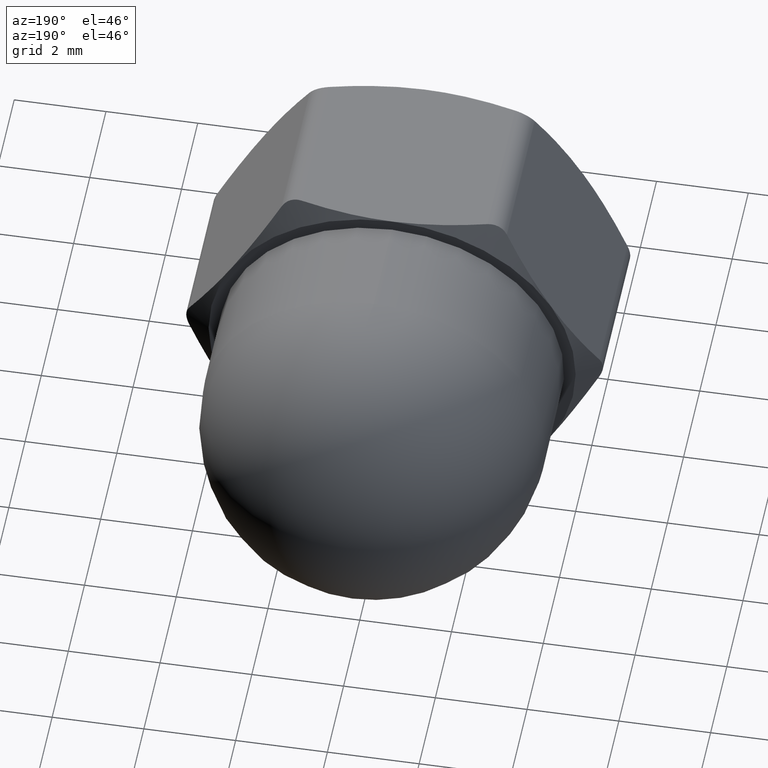
[diagram: clean part render]
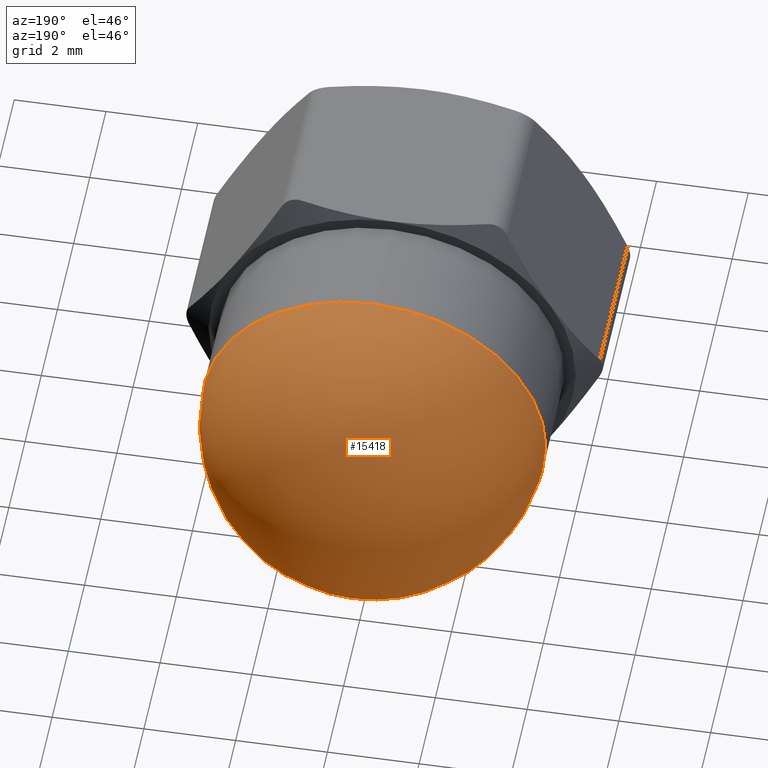
[diagram: same view with one face highlighted and labeled with its STEP entity id]
A machine part, auxiliary view. The second image highlights one B-rep face of the part: STEP entity #15418.
In plain terms, the highlighted spherical surface has radius 3.75 mm.
Its self-contained STEP definition (entity closure, byte-faithful):
#836 = EDGE_CURVE ( 'NONE', #4893, #4893, #3474, .T. ) ;
#975 = DIRECTION ( 'NONE',  ( 1.000000000000000000, 4.625929269271485900E-016, 0.0000000000000000000 ) ) ;
#2370 = SPHERICAL_SURFACE ( 'NONE', #12333, 3.750000000000000000 ) ;
#3474 = CIRCLE ( 'NONE', #6062, 3.750000000000000000 ) ;
#4893 = VERTEX_POINT ( 'NONE', #14698 ) ;
#5720 = DIRECTION ( 'NONE',  ( -1.000000000000000000, -4.625929269271485900E-016, 0.0000000000000000000 ) ) ;
#6062 = AXIS2_PLACEMENT_3D ( 'NONE', #8126, #11854, #5720 ) ;
#8126 = CARTESIAN_POINT ( 'NONE',  ( 3.827021247335466500E-016, 6.250000000000002700, 0.0000000000000000000 ) ) ;
#10067 = ORIENTED_EDGE ( 'NONE', *, *, #836, .T. ) ;
#10730 = CARTESIAN_POINT ( 'NONE',  ( 3.827021247335477800E-016, 6.250000000000000000, 0.0000000000000000000 ) ) ;
#11854 = DIRECTION ( 'NONE',  ( -4.286263797015736100E-016, 1.000000000000000000, -0.0000000000000000000 ) ) ;
#12333 = AXIS2_PLACEMENT_3D ( 'NONE', #10730, #15633, #975 ) ;
#12667 = EDGE_LOOP ( 'NONE', ( #10067 ) ) ;
#12906 = FACE_OUTER_BOUND ( 'NONE', #12667, .T. ) ;
#14698 = CARTESIAN_POINT ( 'NONE',  ( -3.749999999999999600, 6.250000000000000900, 0.0000000000000000000 ) ) ;
#15418 = ADVANCED_FACE ( 'NONE', ( #12906 ), #2370, .T. ) ;
#15633 = DIRECTION ( 'NONE',  ( 0.0000000000000000000, 0.0000000000000000000, -1.000000000000000000 ) ) ;